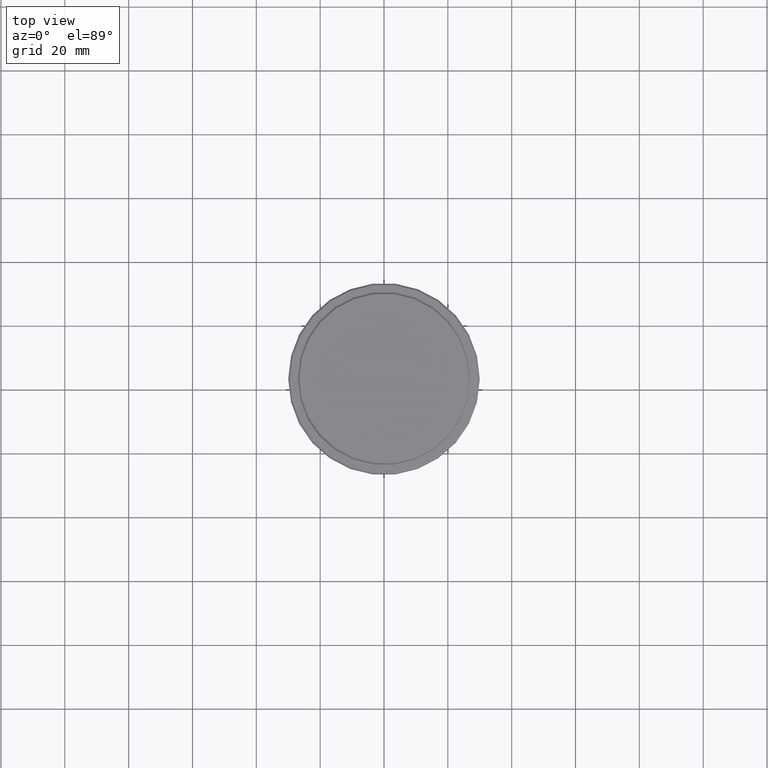
[diagram: clean part render]
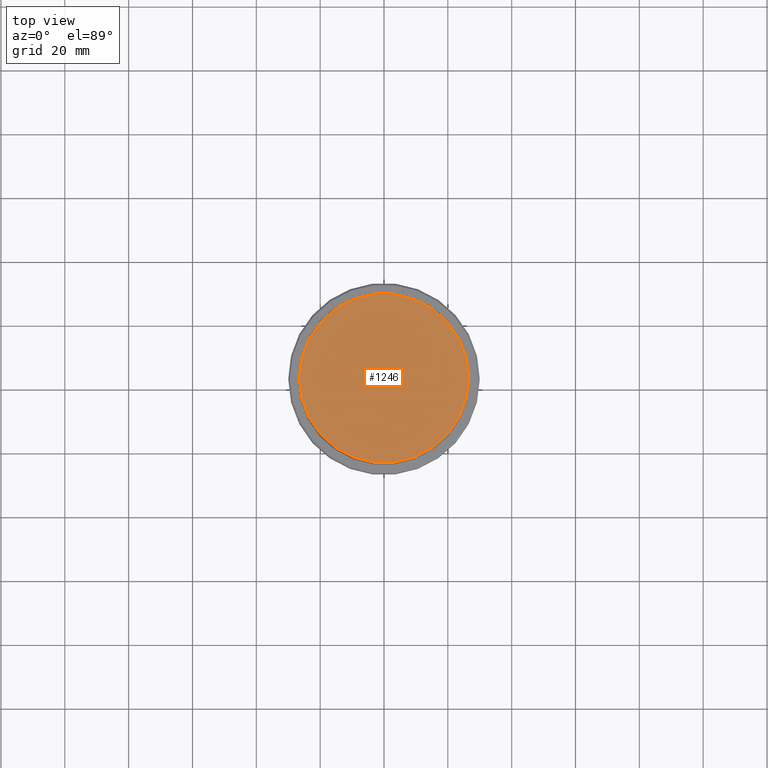
[diagram: same view with one face highlighted and labeled with its STEP entity id]
A machine part, top view. The second image highlights one B-rep face of the part: STEP entity #1246.
In plain terms, the highlighted planar face has unit normal (0, -0, 1).
Its self-contained STEP definition (entity closure, byte-faithful):
#16 = EDGE_CURVE ( 'NONE', #505, #1208, #597, .T. ) ;
#148 = AXIS2_PLACEMENT_3D ( 'NONE', #365, #390, #816 ) ;
#365 = CARTESIAN_POINT ( 'NONE',  ( 0.000000000000000000, 0.000000000000000000, 0.000000000000000000 ) ) ;
#390 = DIRECTION ( 'NONE',  ( -0.000000000000000000, -0.000000000000000000, 1.000000000000000000 ) ) ;
#406 = DIRECTION ( 'NONE',  ( 1.000000000000000000, 0.000000000000000000, 0.000000000000000000 ) ) ;
#420 = CARTESIAN_POINT ( 'NONE',  ( 0.000000000000000000, 0.000000000000000000, 0.000000000000000000 ) ) ;
#505 = VERTEX_POINT ( 'NONE', #509 ) ;
#509 = CARTESIAN_POINT ( 'NONE',  ( -26.49999999999996803, 0.000000000000000000, 0.000000000000000000 ) ) ;
#517 = CIRCLE ( 'NONE', #148, 26.49999999999996803 ) ;
#523 = PLANE ( 'NONE',  #879 ) ;
#570 = ORIENTED_EDGE ( 'NONE', *, *, #16, .T. ) ;
#597 = CIRCLE ( 'NONE', #1384, 26.49999999999996803 ) ;
#633 = EDGE_CURVE ( 'NONE', #1208, #505, #517, .T. ) ;
#640 = DIRECTION ( 'NONE',  ( 0.000000000000000000, -0.000000000000000000, 1.000000000000000000 ) ) ;
#753 = EDGE_LOOP ( 'NONE', ( #570, #1162 ) ) ;
#816 = DIRECTION ( 'NONE',  ( 1.000000000000000000, 0.000000000000000000, 0.000000000000000000 ) ) ;
#879 = AXIS2_PLACEMENT_3D ( 'NONE', #420, #640, #954 ) ;
#954 = DIRECTION ( 'NONE',  ( 1.000000000000000000, 0.000000000000000000, 0.000000000000000000 ) ) ;
#961 = CARTESIAN_POINT ( 'NONE',  ( 26.49999999999996803, 3.275930187719167580E-15, 0.000000000000000000 ) ) ;
#1162 = ORIENTED_EDGE ( 'NONE', *, *, #633, .T. ) ;
#1176 = FACE_OUTER_BOUND ( 'NONE', #753, .T. ) ;
#1208 = VERTEX_POINT ( 'NONE', #961 ) ;
#1246 = ADVANCED_FACE ( 'NONE', ( #1176 ), #523, .T. ) ;
#1366 = DIRECTION ( 'NONE',  ( -0.000000000000000000, -0.000000000000000000, 1.000000000000000000 ) ) ;
#1384 = AXIS2_PLACEMENT_3D ( 'NONE', #1391, #1366, #406 ) ;
#1391 = CARTESIAN_POINT ( 'NONE',  ( 0.000000000000000000, 0.000000000000000000, 0.000000000000000000 ) ) ;